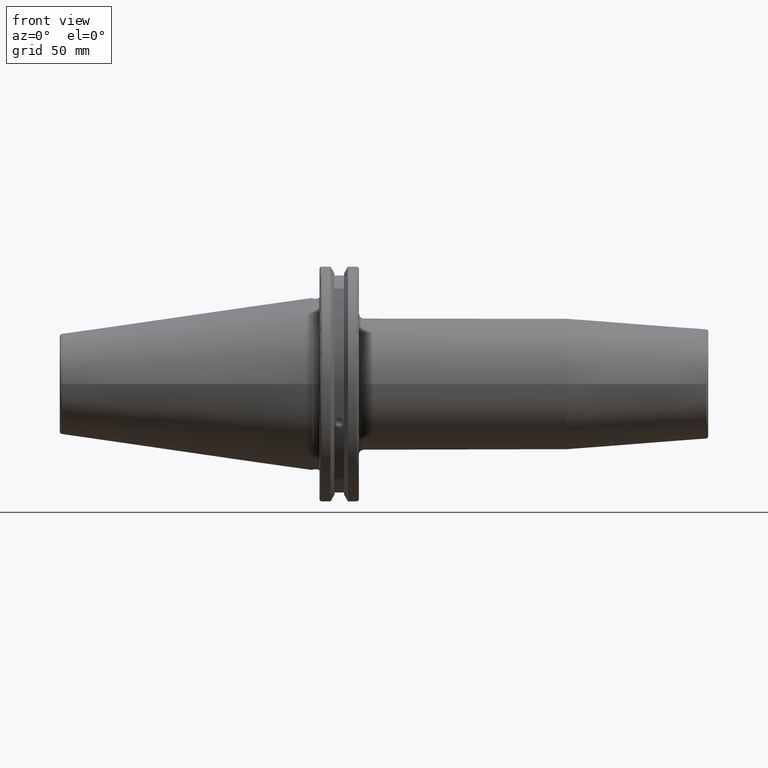
[diagram: clean part render]
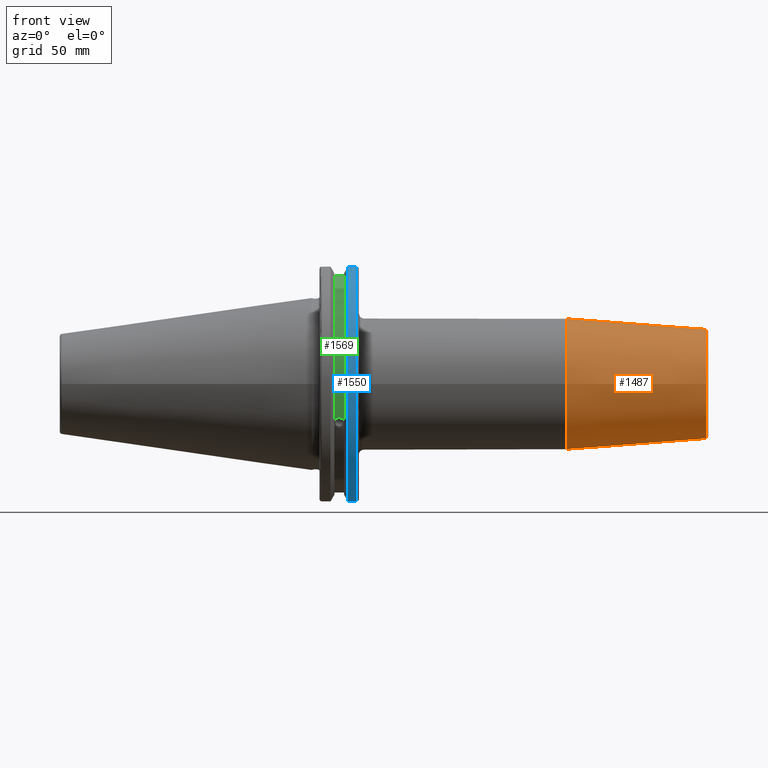
[diagram: same view with three faces highlighted in distinct colors, each labeled with its STEP entity id]
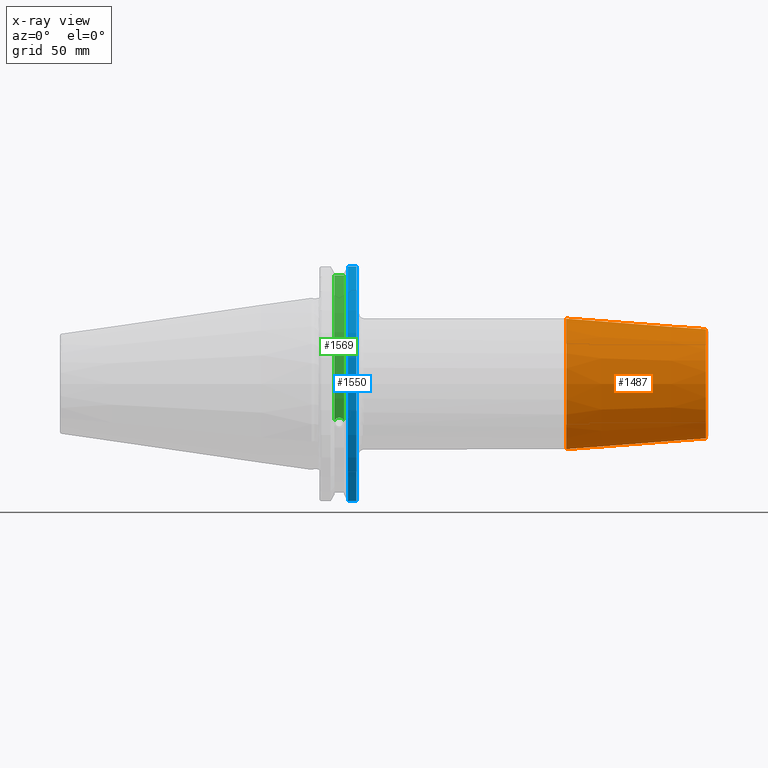
[diagram: x-ray of the same camera — body ghosted, the three highlighted faces saturated]
A machine part, front view with three faces highlighted in distinct colors.
The next image is the same camera in x-ray (body ghosted, the three faces saturated) — at least one of them is partly hidden behind the body in this view.
Their STEP definitions:

[orange] entity #1487 — the highlighted conical surface has half-angle 4.5 deg.
#69=CONICAL_SURFACE('',#1609,24.25,0.0785398163397448);
#84=LINE('',#2222,#178);
#178=VECTOR('',#1797,24.25);
#366=FACE_OUTER_BOUND('',#457,.T.);
#457=EDGE_LOOP('',(#1037,#1038,#1039,#1040,#1041));
#567=CIRCLE('',#1607,22.0725268420749);
#568=CIRCLE('',#1608,22.0725268420749);
#569=CIRCLE('',#1610,26.5);
#643=VERTEX_POINT('',#2215);
#644=VERTEX_POINT('',#2217);
#645=VERTEX_POINT('',#2221);
#800=EDGE_CURVE('',#643,#644,#567,.T.);
#801=EDGE_CURVE('',#644,#643,#568,.T.);
#802=EDGE_CURVE('',#644,#645,#84,.T.);
#803=EDGE_CURVE('',#645,#645,#569,.T.);
#1037=ORIENTED_EDGE('',*,*,#801,.F.);
#1038=ORIENTED_EDGE('',*,*,#802,.T.);
#1039=ORIENTED_EDGE('',*,*,#803,.T.);
#1040=ORIENTED_EDGE('',*,*,#802,.F.);
#1041=ORIENTED_EDGE('',*,*,#800,.F.);
#1487=ADVANCED_FACE('',(#366),#69,.T.);
#1607=AXIS2_PLACEMENT_3D('',#2218,#1791,#1792);
#1608=AXIS2_PLACEMENT_3D('',#2219,#1793,#1794);
#1609=AXIS2_PLACEMENT_3D('',#2220,#1795,#1796);
#1610=AXIS2_PLACEMENT_3D('',#2223,#1798,#1799);
#1791=DIRECTION('center_axis',(1.,0.,0.));
#1792=DIRECTION('ref_axis',(0.,-1.,3.06161699786838E-17));
#1793=DIRECTION('center_axis',(1.,0.,0.));
#1794=DIRECTION('ref_axis',(0.,-1.,3.06161699786838E-17));
#1795=DIRECTION('center_axis',(-1.,0.,0.));
#1796=DIRECTION('ref_axis',(0.,1.,0.));
#1797=DIRECTION('',(-0.996917333733128,-0.0784590957278449,-9.60846804471011E-18));
#1798=DIRECTION('center_axis',(1.,0.,0.));
#1799=DIRECTION('ref_axis',(0.,0.,-1.));
#2215=CARTESIAN_POINT('',(159.078459095728,-2.70310493462411E-15,22.0725268420749));
#2217=CARTESIAN_POINT('',(159.078459095728,-22.0725268420749,-2.70310493462411E-15));
#2218=CARTESIAN_POINT('Origin',(159.078459095728,0.,-3.37888116828014E-15));
#2219=CARTESIAN_POINT('Origin',(159.078459095728,0.,-3.37888116828014E-15));
#2220=CARTESIAN_POINT('Origin',(131.411039343607,0.,0.));
#2221=CARTESIAN_POINT('',(102.822078687214,-26.5,-3.24531401774049E-15));
#2222=CARTESIAN_POINT('',(131.411039343607,-24.25,-2.96976848793233E-15));
#2223=CARTESIAN_POINT('Origin',(102.822078687214,0.,0.));

[blue] entity #1550 — the highlighted cylindrical surface (partial cylindrical patch) has radius 49.2125 mm, axis along (1, 0, 0).
#168=LINE('',#3087,#262);
#169=LINE('',#3089,#263);
#262=VECTOR('',#2121,10.);
#263=VECTOR('',#2124,10.);
#292=CYLINDRICAL_SURFACE('',#1730,49.2125);
#429=FACE_OUTER_BOUND('',#537,.T.);
#537=EDGE_LOOP('',(#1383,#1384,#1385,#1386));
#591=CIRCLE('',#1655,49.2125);
#615=CIRCLE('',#1702,49.2125);
#698=VERTEX_POINT('',#2571);
#699=VERTEX_POINT('',#2575);
#759=VERTEX_POINT('',#2930);
#760=VERTEX_POINT('',#2939);
#870=EDGE_CURVE('',#699,#698,#591,.T.);
#951=EDGE_CURVE('',#759,#760,#615,.T.);
#997=EDGE_CURVE('',#760,#698,#168,.T.);
#998=EDGE_CURVE('',#699,#759,#169,.T.);
#1383=ORIENTED_EDGE('',*,*,#951,.F.);
#1384=ORIENTED_EDGE('',*,*,#998,.F.);
#1385=ORIENTED_EDGE('',*,*,#870,.T.);
#1386=ORIENTED_EDGE('',*,*,#997,.F.);
#1550=ADVANCED_FACE('',(#429),#292,.T.);
#1655=AXIS2_PLACEMENT_3D('',#2576,#1917,#1918);
#1702=AXIS2_PLACEMENT_3D('',#2940,#2042,#2043);
#1730=AXIS2_PLACEMENT_3D('',#3088,#2122,#2123);
#1917=DIRECTION('center_axis',(1.,0.,0.));
#1918=DIRECTION('ref_axis',(0.,0.,-1.));
#2042=DIRECTION('center_axis',(1.,0.,0.));
#2043=DIRECTION('ref_axis',(0.,-1.,1.60812264967664E-16));
#2121=DIRECTION('',(-1.,0.,0.));
#2122=DIRECTION('center_axis',(1.,0.,0.));
#2123=DIRECTION('ref_axis',(0.,-1.,1.22464679914735E-16));
#2124=DIRECTION('',(1.,0.,0.));
#2571=CARTESIAN_POINT('',(14.6602090340487,-13.4317035994433,-47.3440544806494));
#2575=CARTESIAN_POINT('',(14.6602090340487,-13.4317035994433,47.3440544806494));
#2576=CARTESIAN_POINT('Origin',(14.6602090340487,0.,0.));
#2930=CARTESIAN_POINT('',(18.05,-13.4317035994433,47.3440544806494));
#2939=CARTESIAN_POINT('',(18.05,-13.4317035994433,-47.3440544806494));
#2940=CARTESIAN_POINT('Origin',(18.05,0.,0.));
#3087=CARTESIAN_POINT('',(16.8551045170244,-13.4317035994433,-47.3440544806494));
#3088=CARTESIAN_POINT('Origin',(16.8551045170244,0.,0.));
#3089=CARTESIAN_POINT('',(16.8551045170244,-13.4317035994433,47.3440544806494));

[green] entity #1569 — the highlighted cylindrical surface (partial cylindrical patch) has radius 45.6435 mm, axis along (1, 0, 0).
#40=B_SPLINE_CURVE_WITH_KNOTS('',3,(#2488,#2489,#2490,#2491,#2492,#2493,
#2494,#2495,#2496,#2497,#2498,#2499,#2500,#2501),.UNSPECIFIED.,.F.,.F.,
(4,2,2,2,2,2,4),(0.40154831257669,0.474697095495631,0.553813286063443,0.632929476631254,
0.712045667199066,0.791161857766877,0.864310640685818),.UNSPECIFIED.);
#148=LINE('',#2967,#242);
#242=VECTOR('',#2049,10.);
#298=CYLINDRICAL_SURFACE('',#1759,45.6435);
#448=FACE_OUTER_BOUND('',#558,.T.);
#558=EDGE_LOOP('',(#1466,#1467,#1468,#1469));
#634=CIRCLE('',#1758,45.6435);
#635=CIRCLE('',#1760,45.6435);
#684=VERTEX_POINT('',#2485);
#685=VERTEX_POINT('',#2487);
#764=VERTEX_POINT('',#2964);
#765=VERTEX_POINT('',#2966);
#853=EDGE_CURVE('',#685,#684,#40,.T.);
#958=EDGE_CURVE('',#765,#764,#148,.T.);
#1016=EDGE_CURVE('',#764,#685,#634,.T.);
#1017=EDGE_CURVE('',#765,#684,#635,.T.);
#1466=ORIENTED_EDGE('',*,*,#853,.T.);
#1467=ORIENTED_EDGE('',*,*,#1017,.F.);
#1468=ORIENTED_EDGE('',*,*,#958,.T.);
#1469=ORIENTED_EDGE('',*,*,#1016,.T.);
#1569=ADVANCED_FACE('',(#448),#298,.T.);
#1758=AXIS2_PLACEMENT_3D('',#3133,#2186,#2187);
#1759=AXIS2_PLACEMENT_3D('',#3134,#2188,#2189);
#1760=AXIS2_PLACEMENT_3D('',#3135,#2190,#2191);
#2049=DIRECTION('',(-1.,0.,0.));
#2186=DIRECTION('center_axis',(1.,0.,0.));
#2187=DIRECTION('ref_axis',(0.,0.,-1.));
#2188=DIRECTION('center_axis',(1.,0.,0.));
#2189=DIRECTION('ref_axis',(0.,-0.888619069115281,0.458645996390125));
#2190=DIRECTION('center_axis',(1.,0.,0.));
#2191=DIRECTION('ref_axis',(0.,0.,-1.));
#2485=CARTESIAN_POINT('',(13.0491,-43.1779814500336,-14.7983448449669));
#2487=CARTESIAN_POINT('',(9.2191,-43.1779814500336,-14.7983448449669));
#2488=CARTESIAN_POINT('Ctrl Pts',(9.2191,-43.1779814500335,-14.7983448449669));
#2489=CARTESIAN_POINT('Ctrl Pts',(9.32532177598176,-43.2545173750974,-14.5750315766731));
#2490=CARTESIAN_POINT('Ctrl Pts',(9.47680807557665,-43.3223492818373,-14.3712521044637));
#2491=CARTESIAN_POINT('Ctrl Pts',(9.83560503400179,-43.4340904392251,-14.0300988117073));
#2492=CARTESIAN_POINT('Ctrl Pts',(10.0717203280543,-43.4832903960863,-13.8760243976176));
#2493=CARTESIAN_POINT('Ctrl Pts',(10.5891059167872,-43.54802519266,-13.6715068146718));
#2494=CARTESIAN_POINT('Ctrl Pts',(10.870379364774,-43.5636826100883,-13.6211104428929));
#2495=CARTESIAN_POINT('Ctrl Pts',(11.397820635226,-43.5636826100883,-13.6211104428929));
#2496=CARTESIAN_POINT('Ctrl Pts',(11.6790940832128,-43.54802519266,-13.6715068146718));
#2497=CARTESIAN_POINT('Ctrl Pts',(12.1964796719457,-43.4832903960863,-13.8760243976176));
#2498=CARTESIAN_POINT('Ctrl Pts',(12.4325949659982,-43.4340904392251,-14.0300988117073));
#2499=CARTESIAN_POINT('Ctrl Pts',(12.7913919244233,-43.3223492818373,-14.3712521044637));
#2500=CARTESIAN_POINT('Ctrl Pts',(12.9428782240182,-43.2545173750974,-14.5750315766731));
#2501=CARTESIAN_POINT('Ctrl Pts',(13.0491,-43.1779814500335,-14.7983448449669));
#2964=CARTESIAN_POINT('',(9.2191,-12.95,43.7678716897452));
#2966=CARTESIAN_POINT('',(13.0491,-12.95,43.7678716897452));
#2967=CARTESIAN_POINT('',(11.1341,-12.95,43.7678716897452));
#3133=CARTESIAN_POINT('Origin',(9.2191,0.,0.));
#3134=CARTESIAN_POINT('Origin',(11.1341,0.,0.));
#3135=CARTESIAN_POINT('Origin',(13.0491,0.,0.));